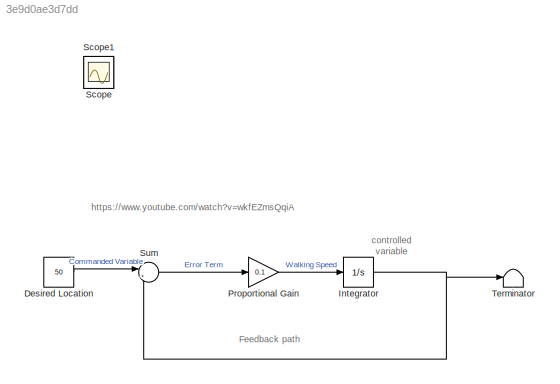
MODEL slx_3e9d0ae3d7dd
KIND model
CONFIG AbsTol = auto
CONFIG EnableMultiTasking = off
CONFIG FixedStep = auto
CONFIG MaxStep = auto
CONFIG MinStep = auto
CONFIG RelTol = 1e-3
CONFIG SampleTimeConstraint = Unconstrained
CONFIG SolverName = VariableStepAuto
CONFIG StartTime = 0.0
CONFIG StopTime = 50
BLOCK [Constant] Desired Location
  Value = 50
BLOCK [Integrator] Integrator
BLOCK [Gain] Proportional Gain
  Gain = 0.1
BLOCK [Scope] Scope
  ActiveDisplayYMaximum = 55.870990475190759
  ActiveDisplayYMinimum = -6.2078878305767491
  Floating = off
  GraphicalSettings = {"Style":{"BackgroundColor":[0.12941176470588237,0.12941176470588237,0.12941176470588237],"AxesColor":[0.07058823529411765,0.07058823529411765,0.07058823529411765],"LabelsColor":[0.8509803921568627,0.8509803921568627,0.8509803921568627],"PreserveColors":false,"Visible":[true],"LineStyle":["-"],"LineWidth":[1.5],"BarWidth":[0.9],"LineColor":["auto"],"LineFaceAlpha":[1],"LineEdgeAlpha":[1],"Marker":...<+1944ch>
  IOType = viewer
  MultipleDisplayCache = [{"MaxYLimMag":55.870990475190759,"MaxYLimReal":55.870990475190759,"MinYLimMag":0,"MinYLimReal":-6.2078878305767491,"PlotAsMagnitudePhase":false,"ShowGrid":true,"ShowLegend":false,"Title":"%<SignalLabel>","YLabel":""}]
  NumInputPorts = 1
  ScopeFrameLocation = window
  WasSavedAsWebScope = on
  WindowPosition = [2505.000000,78.000000,560.000000,420.000000,]
BLOCK [Scope] Scope1
  ActiveDisplayYMaximum = 5.6207887830576748
  ActiveDisplayYMinimum = -0.58709904751907571
  DataLoggingVariableName = ScopeData1
  Floating = off
  GraphicalSettings = {"Style":{"BackgroundColor":[0.12941176470588237,0.12941176470588237,0.12941176470588237],"AxesColor":[0.07058823529411765,0.07058823529411765,0.07058823529411765],"LabelsColor":[0.8509803921568627,0.8509803921568627,0.8509803921568627],"PreserveColors":false,"Visible":[true],"LineStyle":["-"],"LineWidth":[1.5],"BarWidth":[0.9],"LineColor":["auto"],"LineFaceAlpha":[1],"LineEdgeAlpha":[1],"Marker":...<+1926ch>
  IOType = viewer
  MultipleDisplayCache = [{"MaxYLimMag":5.6207887830576748,"MaxYLimReal":5.6207887830576748,"MinYLimMag":0,"MinYLimReal":-0.58709904751907571,"PlotAsMagnitudePhase":false,"ShowGrid":true,"ShowLegend":false,"Title":"%<SignalLabel>","YLabel":""}]
  NumInputPorts = 1
  ScopeFrameLocation = window
  WasSavedAsWebScope = on
  WindowPosition = [1939.000000,81.000000,560.000000,420.000000,]
BLOCK [Sum] Sum
  Inputs = |+-
BLOCK [Terminator] Terminator
ANNOTATION (root): https://www.youtube.com/watch?v=wkfEZmsQqiA
ANNOTATION (root): Feedback path
ANNOTATION (root): controlled variable
LINE Desired Location:1 -> Sum:1
NET Integrator:1 -> Sum:2, Terminator:1
LINE Proportional Gain:1 -> Integrator:1
LINE Sum:1 -> Proportional Gain:1
note: NET lines group one-source signal fan-out (src -> all destinations, sorted); 1:1 wires keep LINE
